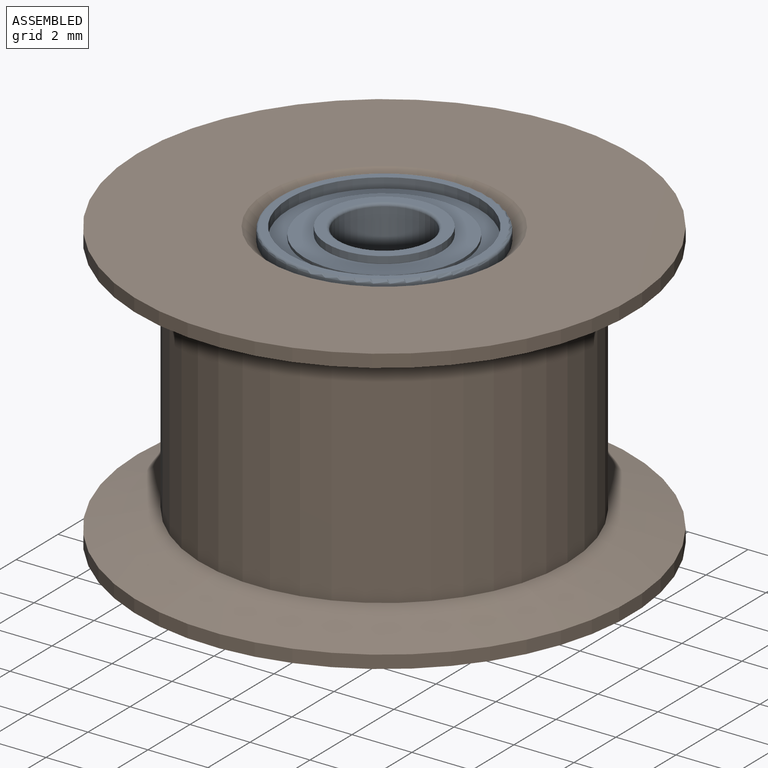
[diagram: assembled view]
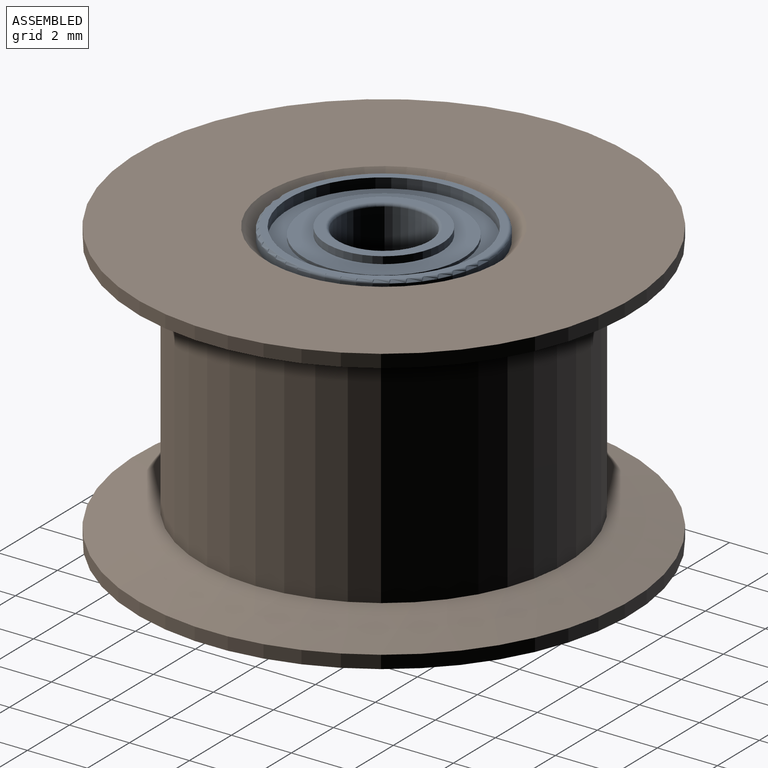
[diagram: assembled view, second angle]
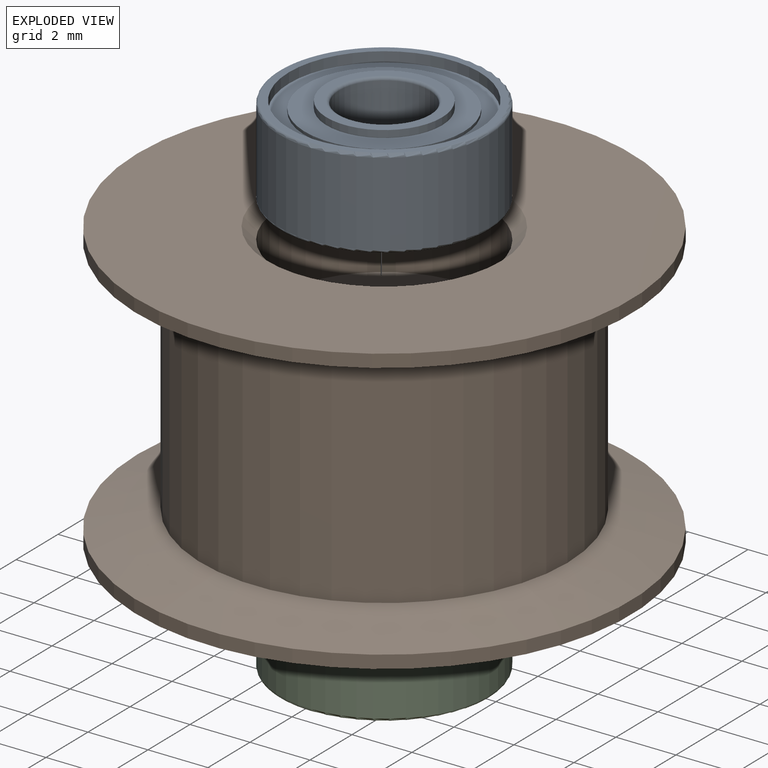
[diagram: exploded view]
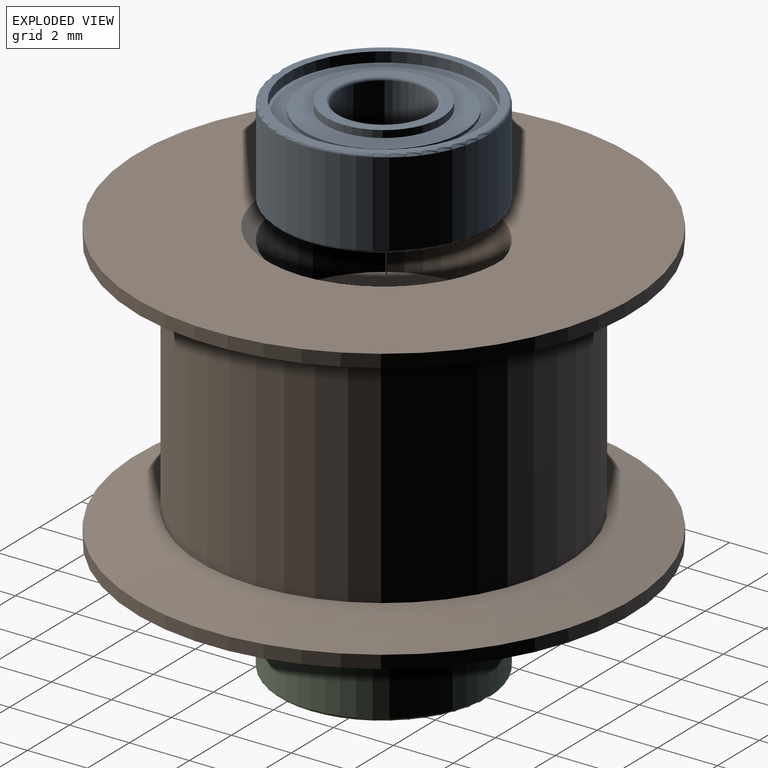
[diagram: exploded view, second angle]
ASSEMBLY  parts=3 mates=2
PART A: 30 faces, bbox 7.6x3x7.6 mm
  f0: plane 3.85x3.85mm, normal (0,-1,0), area 3.6mm2, adj f1,f2
  f1: torus R=1.6mm, axis (0,-1,0), area 1.5mm2, adj f0,f3
  f2: cylinder r=1.93mm len=3.85mm, axis (0,1,0), area 2.9mm2, adj f0,f4
  f3: cylinder r=1.5mm len=3mm, axis (0,1,0), area 26.4mm2, adj f1,f5
  f4: plane 5.3x5.3mm, normal (0,-1,0), area 10.4mm2, adj f2,f8
  f5: torus R=1.6mm, axis (0,-1,0), area 1.5mm2, adj f3,f6
  f6: plane 3.85x3.85mm, normal (0,1,0), area 3.6mm2, adj f5,f7
  f7: cylinder r=1.93mm len=3.85mm, axis (0,1,0), area 2.9mm2, adj f6,f9
  f8: cylinder r=2.65mm len=5.3mm, axis (0,-1,0), area 1.7mm2, adj f4,f10
  f9: plane 5.3x5.3mm, normal (0,1,0), area 10.4mm2, adj f7,f13
  f10: plane 6.35x6.35mm, normal (0,-1,0), area 9.6mm2, adj f8,f11
  f11: cylinder r=3.17mm len=6.35mm, axis (0,1,0), area 6.7mm2, adj f10,f12
  f12: plane 6.8x6.8mm, normal (0,-1,0), area 4.6mm2, adj f11,f14
  f13: cylinder r=2.65mm len=5.3mm, axis (0,1,0), area 1.7mm2, adj f9,f15
  f14: torus R=3.4mm, axis (0,-1,0), area 3.4mm2, adj f12,f16
  f15: plane 6.35x6.35mm, normal (0,1,0), area 9.6mm2, adj f13,f17
  f16: cylinder r=3.5mm len=7mm, axis (0,1,0), area 61.6mm2, adj f14,f18
  f17: cylinder r=3.17mm len=6.35mm, axis (0,1,0), area 6.7mm2, adj f15,f19
  f18: torus R=3.4mm, axis (0,-1,0), area 3.4mm2, adj f16,f19
  f19: plane 6.8x6.8mm, normal (0,1,0), area 4.6mm2, adj f17,f18
  f20: plane 5.1x5.1mm, normal (0,1,0), area 6.6mm2, adj f21,f23
  f21: cylinder r=2.1mm len=4.2mm, axis (0,1,0), area 30.7mm2, adj f20,f22
  f22: plane 5.1x5.1mm, normal (0,-1,0), area 6.6mm2, adj f21,f29
  f23: cylinder r=2.55mm len=5.1mm, axis (0,-1,0), area 1.6mm2, adj f20,f26
  f24: plane 6.15x6.15mm, normal (0,-1,0), area 9.3mm2, adj f25,f29
  f25: cylinder r=3.08mm len=6.15mm, axis (0,1,0), area 14mm2, adj f24,f28
  f26: plane 6.15x6.15mm, normal (0,1,0), area 9.3mm2, adj f23,f27
  f27: cylinder r=3.08mm len=6.15mm, axis (0,1,0), area 14mm2, adj f26,f28
  f28: torus R=2.55mm, axis (0,-1,0), area 14.1mm2, adj f25,f27
  f29: cylinder r=2.55mm len=5.1mm, axis (0,1,0), area 1.6mm2, adj f22,f24
PART B: 16 faces, bbox 16.5x16.5x9.5 mm
  f0: cylinder r=3.5mm len=7mm, axis (0,0,-1), area 57.2mm2, adj f11,f14
  f1: plane 16.46x16.46mm, normal (0,0,-1), area 165.1mm2, adj f2,f14
  f2: cylinder r=8.23mm len=16.46mm, axis (0,0,-1), area 22.3mm2, adj f1,f3
  f3: cone r=6.11mm half-angle=75deg, axis (0,0,-1), area 99mm2, adj f2,f4
  f4: cylinder r=6.11mm len=12.22mm, axis (0,0,-1), area 287.9mm2, adj f3,f5
  f5: cone r=8.23mm half-angle=75deg, axis (0,0,1), area 99mm2, adj f4,f6
  f6: cylinder r=8.23mm len=16.46mm, axis (0,0,-1), area 22.3mm2, adj f5,f7
  f7: plane 16.46x16.46mm, normal (0,0,1), area 165.1mm2, adj f6,f15
  f8: cylinder r=3.5mm len=7mm, axis (0,0,-1), area 57.2mm2, adj f9,f15
  f9: plane 7x7mm, normal (0,0,1), area 25.9mm2, adj f8,f12
  f10: cylinder r=1.6mm len=3.2mm, axis (0,0,-1), area 27.1mm2, adj f12,f13
  f11: plane 7x7mm, normal (0,0,-1), area 25.9mm2, adj f0,f13
  f12: cone r=2mm half-angle=45deg, axis (0,0,1), area 6.4mm2, adj f9,f10
  f13: cone r=1.6mm half-angle=45deg, axis (0,0,-1), area 6.4mm2, adj f10,f11
  f14: cone r=3.5mm half-angle=45deg, axis (0,0,-1), area 13.2mm2, adj f0,f1
  f15: cone r=3.9mm half-angle=45deg, axis (0,0,1), area 13.2mm2, adj f7,f8
PART C: same geometry as A
PLACE A rot(axis=(-1,0,0),90deg) t=(-9.29,367.38,-8.39)mm
PLACE B t=(-9.29,367.38,-14.89)mm
PLACE C rot(axis=(1,0,0),90deg) t=(-9.29,367.38,-11.89)mm
MATE fastened A.f21 <-> B.f0  axis (0,0,-1) through (-9.29,367.38,-8.39)mm
MATE fastened C.f21 <-> B.f0  axis (0,0,1) through (-9.29,367.38,-11.89)mm
